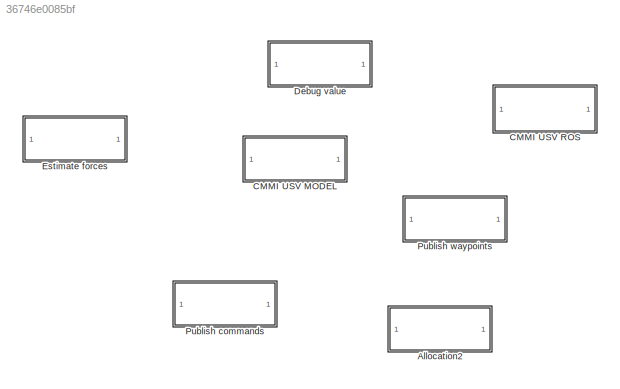
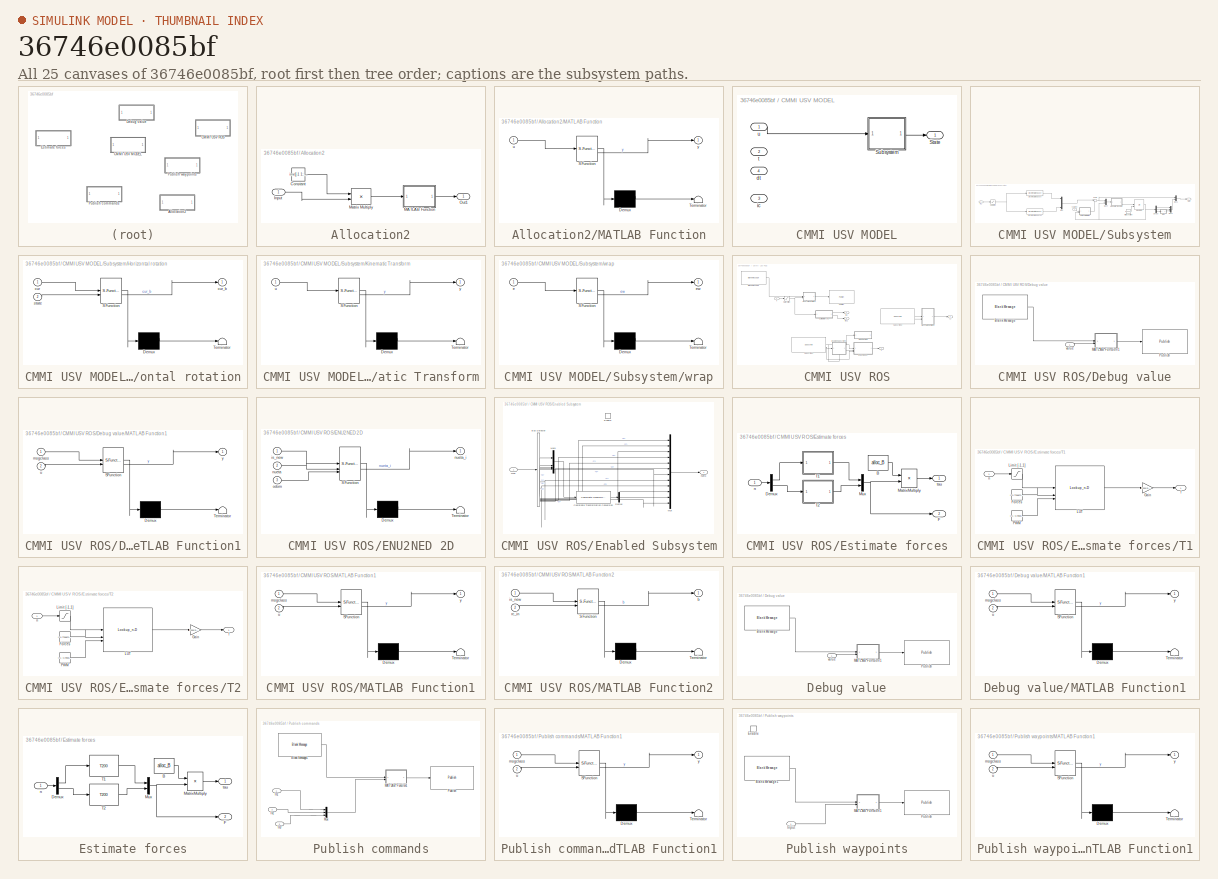
[diagram: thumbnail index - all 25 canvases of the model, root first then tree order]
MODEL slx_36746e0085bf
KIND library
CONFIG AbsTol = auto
CONFIG EnableMultiTasking = off
CONFIG FixedStep = auto
CONFIG MaxStep = auto
CONFIG MinStep = auto
CONFIG RelTol = 1e-3
CONFIG SampleTimeConstraint = Unconstrained
CONFIG SolverName = VariableStepAuto
CONFIG StartTime = 0.0
CONFIG StopTime = 10.0
BLOCK [SubSystem] Allocation2
BLOCK [Constant] Allocation2/Constant
  Value = inv([-1 1; 1 1])
BLOCK [Inport] Allocation2/Input
BLOCK [SubSystem] Allocation2/MATLAB Function
  ErrorFcn = Stateflow.Translate.translate
  PermitHierarchicalResolution = ExplicitOnly
  SFBlockType = MATLAB Function
  TreatAsAtomicUnit = on
BLOCK [Demux] Allocation2/MATLAB Function/ Demux 
  Outputs = 1
BLOCK [S-Function] Allocation2/MATLAB Function/ SFunction 
  EnableBusSupport = on
  FunctionName = sf_sfun
  PortCounts = [1 2]
  SFcnIsStateOwnerBlock = off
  SFunctionDeploymentMode = off
  Tag = Stateflow S-Function 10
BLOCK [Terminator] Allocation2/MATLAB Function/ Terminator 
BLOCK [Inport] Allocation2/MATLAB Function/u
BLOCK [Outport] Allocation2/MATLAB Function/y
BLOCK [Product] Allocation2/Matrix Multiply
  Multiplication = Matrix(*)
BLOCK [Outport] Allocation2/Out1
BLOCK [SubSystem] CMMI USV MODEL
BLOCK [Outport] CMMI USV MODEL/State
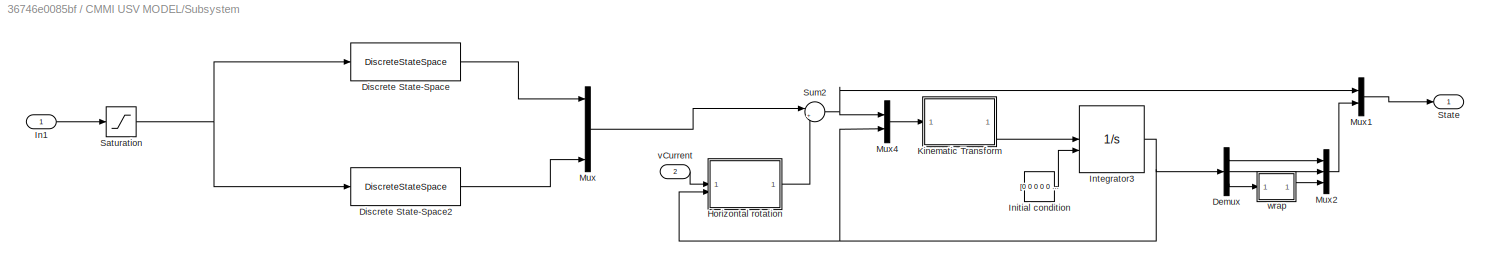
BLOCK [SubSystem] CMMI USV MODEL/Subsystem
BLOCK [Demux] CMMI USV MODEL/Subsystem/Demux
  Outputs = 3
BLOCK [DiscreteStateSpace] CMMI USV MODEL/Subsystem/Discrete State-Space
  A = ss_x.A
  B = ss_x.B
  C = ss_x.C
  D = ss_x.D
  SampleTime = ss_x.Ts
BLOCK [DiscreteStateSpace] CMMI USV MODEL/Subsystem/Discrete State-Space2
  A = ss_yaw.A
  B = ss_yaw.B
  C = ss_yaw.C
  D = ss_yaw.D
  SampleTime = ss_yaw.Ts
BLOCK [SubSystem] CMMI USV MODEL/Subsystem/Horizontal rotation
  ErrorFcn = Stateflow.Translate.translate
  PermitHierarchicalResolution = ExplicitOnly
  SFBlockType = MATLAB Function
  TreatAsAtomicUnit = on
BLOCK [Demux] CMMI USV MODEL/Subsystem/Horizontal rotation/ Demux 
  Outputs = 1
BLOCK [S-Function] CMMI USV MODEL/Subsystem/Horizontal rotation/ SFunction 
  EnableBusSupport = off
  FunctionName = sf_sfun
  PortCounts = [2 2]
  SFcnIsStateOwnerBlock = off
  SFunctionDeploymentMode = off
  Tag = Stateflow S-Function 1
BLOCK [Terminator] CMMI USV MODEL/Subsystem/Horizontal rotation/ Terminator 
BLOCK [Inport] CMMI USV MODEL/Subsystem/Horizontal rotation/cur
BLOCK [Outport] CMMI USV MODEL/Subsystem/Horizontal rotation/cur_b
BLOCK [Inport] CMMI USV MODEL/Subsystem/Horizontal rotation/state
  Port = 2
BLOCK [Inport] CMMI USV MODEL/Subsystem/In1
BLOCK [Constant] CMMI USV MODEL/Subsystem/Initial condition
  Value = [0 0 0 0 0 0]'
BLOCK [Integrator] CMMI USV MODEL/Subsystem/Integrator3
  InitialConditionSource = external
BLOCK [SubSystem] CMMI USV MODEL/Subsystem/Kinematic Transform
  ErrorFcn = Stateflow.Translate.translate
  PermitHierarchicalResolution = ExplicitOnly
  SFBlockType = MATLAB Function
  TreatAsAtomicUnit = on
BLOCK [Demux] CMMI USV MODEL/Subsystem/Kinematic Transform/ Demux 
  Outputs = 1
BLOCK [S-Function] CMMI USV MODEL/Subsystem/Kinematic Transform/ SFunction 
  EnableBusSupport = off
  FunctionName = sf_sfun
  PortCounts = [1 2]
  SFcnIsStateOwnerBlock = off
  SFunctionDeploymentMode = off
  Tag = Stateflow S-Function 8
BLOCK [Terminator] CMMI USV MODEL/Subsystem/Kinematic Transform/ Terminator 
BLOCK [Inport] CMMI USV MODEL/Subsystem/Kinematic Transform/u
BLOCK [Outport] CMMI USV MODEL/Subsystem/Kinematic Transform/y
BLOCK [Mux] CMMI USV MODEL/Subsystem/Mux
  DisplayOption = bar
  Inputs = 6
BLOCK [Mux] CMMI USV MODEL/Subsystem/Mux1
  DisplayOption = bar
  Inputs = 2
BLOCK [Mux] CMMI USV MODEL/Subsystem/Mux2
  DisplayOption = bar
  Inputs = 3
BLOCK [Mux] CMMI USV MODEL/Subsystem/Mux4
  DisplayOption = bar
  Inputs = 2
BLOCK [Saturate] CMMI USV MODEL/Subsystem/Saturation
  LowerLimit = -1
  UpperLimit = 1
BLOCK [Outport] CMMI USV MODEL/Subsystem/State
BLOCK [Sum] CMMI USV MODEL/Subsystem/Sum2
  Inputs = |++
BLOCK [Inport] CMMI USV MODEL/Subsystem/vCurrent
  Port = 2
BLOCK [SubSystem] CMMI USV MODEL/Subsystem/wrap
  ErrorFcn = Stateflow.Translate.translate
  LibrarySourceBlock = simulink/User-Defined\nFunctions/MATLAB Function
  PermitHierarchicalResolution = ExplicitOnly
  SFBlockType = MATLAB Function
  TreatAsAtomicUnit = on
BLOCK [Demux] CMMI USV MODEL/Subsystem/wrap/ Demux 
  Outputs = 1
BLOCK [S-Function] CMMI USV MODEL/Subsystem/wrap/ SFunction 
  EnableBusSupport = off
  FunctionName = sf_sfun
  PortCounts = [1 2]
  SFcnIsStateOwnerBlock = off
  SFunctionDeploymentMode = off
  Tag = Stateflow S-Function 9
BLOCK [Terminator] CMMI USV MODEL/Subsystem/wrap/ Terminator 
BLOCK [Inport] CMMI USV MODEL/Subsystem/wrap/e
BLOCK [Outport] CMMI USV MODEL/Subsystem/wrap/ew
BLOCK [Inport] CMMI USV MODEL/dt
  Port = 4
BLOCK [Inport] CMMI USV MODEL/ic
  Port = 3
BLOCK [Inport] CMMI USV MODEL/t
  Port = 2
BLOCK [Inport] CMMI USV MODEL/u
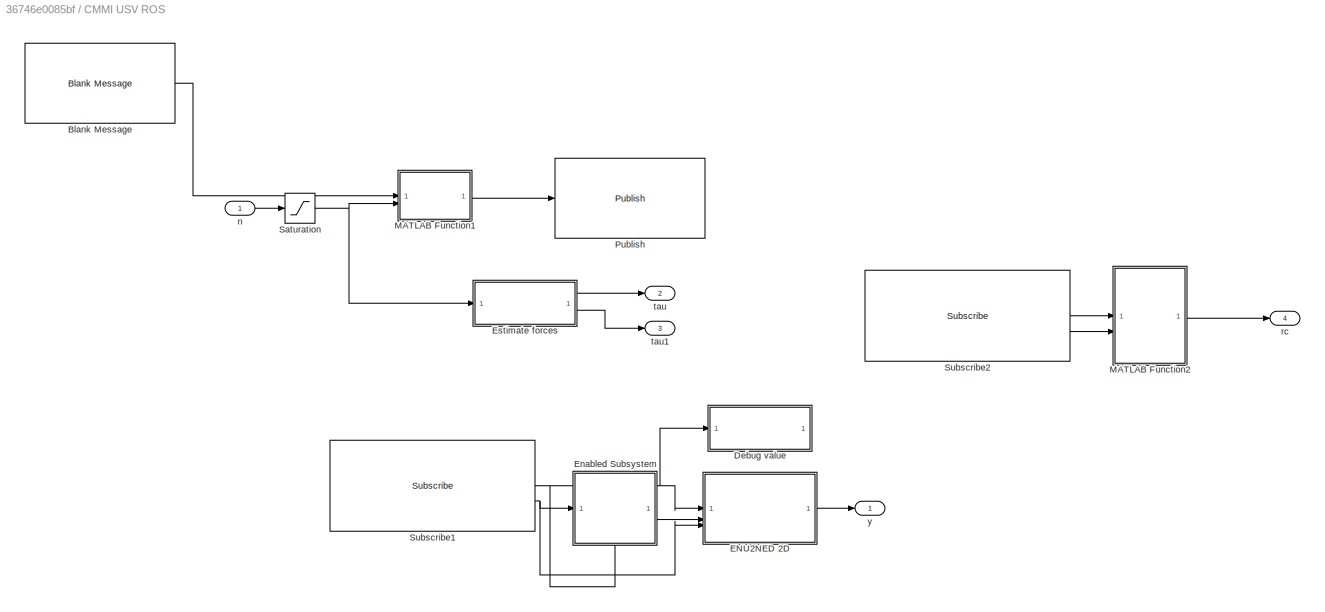
BLOCK [SubSystem] CMMI USV ROS
BLOCK [Reference] CMMI USV ROS/Blank Message  REF=ros2lib/Blank Message  (lib defined in slx_3c1549211f48)
  SourceBlock = ros2lib/Blank Message
  SourceType = ROS2 Blank Message
BLOCK [SubSystem] CMMI USV ROS/Debug value
  AncestorBlock = cmmi_lib/Debug value
BLOCK [Reference] CMMI USV ROS/Debug value/Blank Message  REF=ros2lib/Blank Message  (lib defined in slx_3c1549211f48)
  SourceBlock = ros2lib/Blank Message
  SourceType = ROS2 Blank Message
BLOCK [SubSystem] CMMI USV ROS/Debug value/MATLAB Function1
  ErrorFcn = Stateflow.Translate.translate
  PermitHierarchicalResolution = ExplicitOnly
  SFBlockType = MATLAB Function
  TreatAsAtomicUnit = on
BLOCK [Demux] CMMI USV ROS/Debug value/MATLAB Function1/ Demux 
  Outputs = 1
BLOCK [S-Function] CMMI USV ROS/Debug value/MATLAB Function1/ SFunction 
  EnableBusSupport = off
  FunctionName = sf_sfun
  PortCounts = [2 2]
  SFcnIsStateOwnerBlock = off
  SFunctionDeploymentMode = off
  Tag = Stateflow S-Function 3
BLOCK [Terminator] CMMI USV ROS/Debug value/MATLAB Function1/ Terminator 
BLOCK [Inport] CMMI USV ROS/Debug value/MATLAB Function1/msgclass
BLOCK [Inport] CMMI USV ROS/Debug value/MATLAB Function1/u
  Port = 2
BLOCK [Outport] CMMI USV ROS/Debug value/MATLAB Function1/y
BLOCK [Reference] CMMI USV ROS/Debug value/Publish  REF=ros2lib/Publish  (lib defined in slx_3c1549211f48)
  SourceBlock = ros2lib/Publish
  SourceType = ROS2 Publish
BLOCK [Inport] CMMI USV ROS/Debug value/value
BLOCK [SubSystem] CMMI USV ROS/ENU2NED 2D
  ErrorFcn = Stateflow.Translate.translate
  LibrarySourceBlock = simulink/User-Defined\nFunctions/MATLAB Function
  PermitHierarchicalResolution = ExplicitOnly
  SFBlockType = MATLAB Function
  TreatAsAtomicUnit = on
BLOCK [Demux] CMMI USV ROS/ENU2NED 2D/ Demux 
  Outputs = 1
BLOCK [S-Function] CMMI USV ROS/ENU2NED 2D/ SFunction 
  EnableBusSupport = off
  FunctionName = sf_sfun
  PortCounts = [3 2]
  SFcnIsStateOwnerBlock = off
  SFunctionDeploymentMode = off
  Tag = Stateflow S-Function 5
BLOCK [Terminator] CMMI USV ROS/ENU2NED 2D/ Terminator 
BLOCK [Inport] CMMI USV ROS/ENU2NED 2D/is_new
BLOCK [Inport] CMMI USV ROS/ENU2NED 2D/nueta
  Port = 2
BLOCK [Outport] CMMI USV ROS/ENU2NED 2D/nueta_i
BLOCK [Inport] CMMI USV ROS/ENU2NED 2D/odom
  Port = 3
BLOCK [SubSystem] CMMI USV ROS/Enabled Subsystem
  NameLocation = top
  TreatAsAtomicUnit = on
BLOCK [BusSelector] CMMI USV ROS/Enabled Subsystem/Bus Selector
  OutputSignals = pose.pose.position.x,pose.pose.position.y,pose.pose.position.z,pose.pose.orientation.x,pose.pose.orientation.y,pose.pose.orientation.z,pose.pose.orientation.w,twist.twist.linear.x,twist.twist.linear.y,twist.twist.linear.z,twist.twist.angular.x,twist.twist.angular.y,twist.twist.angular.z
BLOCK [Reference] CMMI USV ROS/Enabled Subsystem/Coordinate Transformation Conversion  REF=robotcorelib/Coordinate Transformation Conversion
  LibrarySourceBlock = roslib/Utilities/Coordinate Transformation Conversion
  SourceBlock = robotcorelib/Coordinate Transformation Conversion
  SourceType = robotics.slcore.internal.block.CoordinateTransformationConversion
BLOCK [Demux] CMMI USV ROS/Enabled Subsystem/Demux
  Outputs = 3
BLOCK [EnablePort] CMMI USV ROS/Enabled Subsystem/Enable
BLOCK [Inport] CMMI USV ROS/Enabled Subsystem/Msg
BLOCK [Mux] CMMI USV ROS/Enabled Subsystem/Mux
  DisplayOption = bar
  Inputs = 12
BLOCK [Mux] CMMI USV ROS/Enabled Subsystem/Mux1
  DisplayOption = bar
BLOCK [Outport] CMMI USV ROS/Enabled Subsystem/nueta
BLOCK [SubSystem] CMMI USV ROS/Estimate forces
  AncestorBlock = cmmi_lib/Estimate forces
BLOCK [Constant] CMMI USV ROS/Estimate forces/B
  Value = alloc_B
BLOCK [Demux] CMMI USV ROS/Estimate forces/Demux
  Outputs = 2
BLOCK [Outport] CMMI USV ROS/Estimate forces/F
  Port = 2
BLOCK [Product] CMMI USV ROS/Estimate forces/MatrixMultiply
  Multiplication = Matrix(*)
BLOCK [Mux] CMMI USV ROS/Estimate forces/Mux
  DisplayOption = bar
  Inputs = 2
BLOCK [SubSystem] CMMI USV ROS/Estimate forces/T1
BLOCK [Constant] CMMI USV ROS/Estimate forces/T1/Forces
  Value = [-0.776887107548430\n-0.772545090180361\n-0.771543086172345\n-0.762525050100200\n-0.751503006012024\n-0.741482965931864\n-0.727454909819639\n-0.717434869739479\n-0.704408817635270\n-0.693386773547094\n-0.684368737474950\n-0.675350701402806\n-0.663326653306613\n-0.649298597194389\n-0.637274549098196\n-0.629258517034068\n-0.614228456913828\n-0.610220440881764\n-0.594188376753507\n-0.584168336673347\n-0.573146292585170\n...<+3057ch>
BLOCK [Gain] CMMI USV ROS/Estimate forces/T1/Gain
  Gain = t200(2).Keff
BLOCK [Lookup_n-D] CMMI USV ROS/Estimate forces/T1/LUT
  BreakpointsForDimension1 = t200_pwm_n
  BreakpointsForDimension1Source = Input port
  InputPortMap = u0,p221,p5
  InternalRulePriority = Speed
  NumberOfTableDimensions = 1
  RndMeth = Simplest
  Table = t200_force_n
  TableSource = Input port
BLOCK [Saturate] CMMI USV ROS/Estimate forces/T1/Limit [-1,1]
  LowerLimit = -1
  UpperLimit = 1
BLOCK [Constant] CMMI USV ROS/Estimate forces/T1/PWM
  Value = [-1\n-0.990000000000000\n-0.980000000000000\n-0.970000000000000\n-0.960000000000000\n-0.950000000000000\n-0.940000000000000\n-0.930000000000000\n-0.920000000000000\n-0.910000000000000\n-0.900000000000000\n-0.890000000000000\n-0.880000000000000\n-0.870000000000000\n-0.860000000000000\n-0.850000000000000\n-0.840000000000000\n-0.830000000000000\n-0.820000000000000\n-0.810000000000000\n-0.800000000000000\n-0.7900000000000...<+3289ch>
BLOCK [Outport] CMMI USV ROS/Estimate forces/T1/f
BLOCK [Inport] CMMI USV ROS/Estimate forces/T1/n
BLOCK [SubSystem] CMMI USV ROS/Estimate forces/T2
BLOCK [Constant] CMMI USV ROS/Estimate forces/T2/Forces
  Value = [-0.776887107548430\n-0.772545090180361\n-0.771543086172345\n-0.762525050100200\n-0.751503006012024\n-0.741482965931864\n-0.727454909819639\n-0.717434869739479\n-0.704408817635270\n-0.693386773547094\n-0.684368737474950\n-0.675350701402806\n-0.663326653306613\n-0.649298597194389\n-0.637274549098196\n-0.629258517034068\n-0.614228456913828\n-0.610220440881764\n-0.594188376753507\n-0.584168336673347\n-0.573146292585170\n...<+3057ch>
BLOCK [Gain] CMMI USV ROS/Estimate forces/T2/Gain
  Gain = t200(2).Keff
BLOCK [Lookup_n-D] CMMI USV ROS/Estimate forces/T2/LUT
  BreakpointsForDimension1 = t200_pwm_n
  BreakpointsForDimension1Source = Input port
  InputPortMap = u0,p221,p5
  InternalRulePriority = Speed
  NumberOfTableDimensions = 1
  RndMeth = Simplest
  Table = t200_force_n
  TableSource = Input port
BLOCK [Saturate] CMMI USV ROS/Estimate forces/T2/Limit [-1,1]
  LowerLimit = -1
  UpperLimit = 1
BLOCK [Constant] CMMI USV ROS/Estimate forces/T2/PWM
  Value = [-1\n-0.990000000000000\n-0.980000000000000\n-0.970000000000000\n-0.960000000000000\n-0.950000000000000\n-0.940000000000000\n-0.930000000000000\n-0.920000000000000\n-0.910000000000000\n-0.900000000000000\n-0.890000000000000\n-0.880000000000000\n-0.870000000000000\n-0.860000000000000\n-0.850000000000000\n-0.840000000000000\n-0.830000000000000\n-0.820000000000000\n-0.810000000000000\n-0.800000000000000\n-0.7900000000000...<+3289ch>
BLOCK [Outport] CMMI USV ROS/Estimate forces/T2/f
BLOCK [Inport] CMMI USV ROS/Estimate forces/T2/n
BLOCK [Inport] CMMI USV ROS/Estimate forces/n
BLOCK [Outport] CMMI USV ROS/Estimate forces/tau
BLOCK [SubSystem] CMMI USV ROS/MATLAB Function1
  ErrorFcn = Stateflow.Translate.translate
  PermitHierarchicalResolution = ExplicitOnly
  SFBlockType = MATLAB Function
  TreatAsAtomicUnit = on
BLOCK [Demux] CMMI USV ROS/MATLAB Function1/ Demux 
  Outputs = 1
BLOCK [S-Function] CMMI USV ROS/MATLAB Function1/ SFunction 
  EnableBusSupport = off
  FunctionName = sf_sfun
  PortCounts = [2 2]
  SFcnIsStateOwnerBlock = off
  SFunctionDeploymentMode = off
  Tag = Stateflow S-Function 4
BLOCK [Terminator] CMMI USV ROS/MATLAB Function1/ Terminator 
BLOCK [Inport] CMMI USV ROS/MATLAB Function1/msgclass
BLOCK [Inport] CMMI USV ROS/MATLAB Function1/u
  Port = 2
BLOCK [Outport] CMMI USV ROS/MATLAB Function1/y
BLOCK [SubSystem] CMMI USV ROS/MATLAB Function2
  ErrorFcn = Stateflow.Translate.translate
  PermitHierarchicalResolution = ExplicitOnly
  SFBlockType = MATLAB Function
  SystemSampleTime = Ts
  TreatAsAtomicUnit = on
BLOCK [Demux] CMMI USV ROS/MATLAB Function2/ Demux 
  Outputs = 1
BLOCK [S-Function] CMMI USV ROS/MATLAB Function2/ SFunction 
  EnableBusSupport = off
  FunctionName = sf_sfun
  PortCounts = [2 2]
  SFcnIsStateOwnerBlock = off
  SFunctionDeploymentMode = off
  Tag = Stateflow S-Function 11
BLOCK [Terminator] CMMI USV ROS/MATLAB Function2/ Terminator 
BLOCK [Outport] CMMI USV ROS/MATLAB Function2/b
BLOCK [Inport] CMMI USV ROS/MATLAB Function2/is_new
BLOCK [Inport] CMMI USV ROS/MATLAB Function2/rc_in
  Port = 2
BLOCK [Reference] CMMI USV ROS/Publish  REF=ros2lib/Publish  (lib defined in slx_3c1549211f48)
  SourceBlock = ros2lib/Publish
  SourceType = ROS2 Publish
BLOCK [Saturate] CMMI USV ROS/Saturation
  LowerLimit = -1
  UpperLimit = 1
BLOCK [Reference] CMMI USV ROS/Subscribe1  REF=ros2lib/Subscribe  (lib defined in slx_3c1549211f48)
  SourceBlock = ros2lib/Subscribe
  SourceType = ROS2 Subscribe
BLOCK [Reference] CMMI USV ROS/Subscribe2  REF=ros2lib/Subscribe  (lib defined in slx_3c1549211f48)
  SourceBlock = ros2lib/Subscribe
  SourceType = ROS2 Subscribe
BLOCK [Inport] CMMI USV ROS/n
BLOCK [Outport] CMMI USV ROS/rc
  Port = 4
BLOCK [Outport] CMMI USV ROS/tau
  Port = 2
BLOCK [Outport] CMMI USV ROS/tau1
  Port = 3
BLOCK [Outport] CMMI USV ROS/y
BLOCK [SubSystem] Debug value
BLOCK [Reference] Debug value/Blank Message  REF=ros2lib/Blank Message  (lib defined in slx_3c1549211f48)
  SourceBlock = ros2lib/Blank Message
  SourceType = ROS2 Blank Message
BLOCK [SubSystem] Debug value/MATLAB Function1
  ErrorFcn = Stateflow.Translate.translate
  PermitHierarchicalResolution = ExplicitOnly
  SFBlockType = MATLAB Function
  TreatAsAtomicUnit = on
BLOCK [Demux] Debug value/MATLAB Function1/ Demux 
  Outputs = 1
BLOCK [S-Function] Debug value/MATLAB Function1/ SFunction 
  EnableBusSupport = off
  FunctionName = sf_sfun
  PortCounts = [2 2]
  SFcnIsStateOwnerBlock = off
  SFunctionDeploymentMode = off
  Tag = Stateflow S-Function 6
BLOCK [Terminator] Debug value/MATLAB Function1/ Terminator 
BLOCK [Inport] Debug value/MATLAB Function1/msgclass
BLOCK [Inport] Debug value/MATLAB Function1/u
  Port = 2
BLOCK [Outport] Debug value/MATLAB Function1/y
BLOCK [Reference] Debug value/Publish  REF=ros2lib/Publish  (lib defined in slx_3c1549211f48)
  SourceBlock = ros2lib/Publish
  SourceType = ROS2 Publish
BLOCK [Inport] Debug value/value
BLOCK [SubSystem] Estimate forces
BLOCK [Constant] Estimate forces/B
  Value = alloc_B
BLOCK [Demux] Estimate forces/Demux
  Outputs = 2
BLOCK [Outport] Estimate forces/F
  Port = 2
BLOCK [Product] Estimate forces/MatrixMultiply
  Multiplication = Matrix(*)
BLOCK [Mux] Estimate forces/Mux
  DisplayOption = bar
  Inputs = 2
BLOCK [Reference] Estimate forces/T1  REF=MarineRoboticsLib/T200
  SourceBlock = MarineRoboticsLib/T200
  SourceType = T200
BLOCK [Reference] Estimate forces/T2  REF=MarineRoboticsLib/T200
  SourceBlock = MarineRoboticsLib/T200
  SourceType = T200
BLOCK [Inport] Estimate forces/n
BLOCK [Outport] Estimate forces/tau
BLOCK [SubSystem] Publish commands
BLOCK [Reference] Publish commands/Blank Message1  REF=ros2lib/Blank Message  (lib defined in slx_3c1549211f48)
  SourceBlock = ros2lib/Blank Message
  SourceType = ROS2 Blank Message
BLOCK [Inport] Publish commands/In1
BLOCK [Inport] Publish commands/In2
  Port = 2
BLOCK [Inport] Publish commands/In3
  Port = 3
BLOCK [SubSystem] Publish commands/MATLAB Function1
  ErrorFcn = Stateflow.Translate.translate
  PermitHierarchicalResolution = ExplicitOnly
  SFBlockType = MATLAB Function
  TreatAsAtomicUnit = on
BLOCK [Demux] Publish commands/MATLAB Function1/ Demux 
  Outputs = 1
BLOCK [S-Function] Publish commands/MATLAB Function1/ SFunction 
  EnableBusSupport = off
  FunctionName = sf_sfun
  PortCounts = [2 2]
  SFcnIsStateOwnerBlock = off
  SFunctionDeploymentMode = off
  Tag = Stateflow S-Function 2
BLOCK [Terminator] Publish commands/MATLAB Function1/ Terminator 
BLOCK [Inport] Publish commands/MATLAB Function1/msgclass
BLOCK [Inport] Publish commands/MATLAB Function1/u
  Port = 2
BLOCK [Outport] Publish commands/MATLAB Function1/y
BLOCK [Mux] Publish commands/Mux
  DisplayOption = bar
  Inputs = 3
BLOCK [Reference] Publish commands/Publish  REF=ros2lib/Publish  (lib defined in slx_3c1549211f48)
  SourceBlock = ros2lib/Publish
  SourceType = ROS2 Publish
BLOCK [SubSystem] Publish waypoints
  TreatAsAtomicUnit = on
BLOCK [Reference] Publish waypoints/Blank Message1  REF=ros2lib/Blank Message  (lib defined in slx_3c1549211f48)
  SourceBlock = ros2lib/Blank Message
  SourceType = ROS2 Blank Message
BLOCK [EnablePort] Publish waypoints/Enable
BLOCK [Inport] Publish waypoints/Input
BLOCK [SubSystem] Publish waypoints/MATLAB Function1
  ErrorFcn = Stateflow.Translate.translate
  PermitHierarchicalResolution = ExplicitOnly
  SFBlockType = MATLAB Function
  TreatAsAtomicUnit = on
BLOCK [Demux] Publish waypoints/MATLAB Function1/ Demux 
  Outputs = 1
BLOCK [S-Function] Publish waypoints/MATLAB Function1/ SFunction 
  EnableBusSupport = off
  FunctionName = sf_sfun
  PortCounts = [2 2]
  SFcnIsStateOwnerBlock = off
  SFunctionDeploymentMode = off
  Tag = Stateflow S-Function 7
BLOCK [Terminator] Publish waypoints/MATLAB Function1/ Terminator 
BLOCK [Inport] Publish waypoints/MATLAB Function1/msgclass
BLOCK [Inport] Publish waypoints/MATLAB Function1/u
  Port = 2
BLOCK [Outport] Publish waypoints/MATLAB Function1/y
BLOCK [Reference] Publish waypoints/Publish  REF=ros2lib/Publish  (lib defined in slx_3c1549211f48)
  SourceBlock = ros2lib/Publish
  SourceType = ROS2 Publish
LINE Allocation2/Constant:1 -> Allocation2/Matrix Multiply:1
LINE Allocation2/Input:1 -> Allocation2/Matrix Multiply:2
LINE Allocation2/MATLAB Function:1 -> Allocation2/Out1:1
LINE Allocation2/Matrix Multiply:1 -> Allocation2/MATLAB Function:1
LINE CMMI USV MODEL/Subsystem/Demux:1 -> CMMI USV MODEL/Subsystem/Mux2:1
LINE CMMI USV MODEL/Subsystem/Demux:2 -> CMMI USV MODEL/Subsystem/Mux2:2
LINE CMMI USV MODEL/Subsystem/Demux:3 -> CMMI USV MODEL/Subsystem/wrap:1
LINE CMMI USV MODEL/Subsystem/Discrete State-Space2:1 -> CMMI USV MODEL/Subsystem/Mux:6
LINE CMMI USV MODEL/Subsystem/Discrete State-Space:1 -> CMMI USV MODEL/Subsystem/Mux:1
LINE CMMI USV MODEL/Subsystem/Horizontal rotation:1 -> CMMI USV MODEL/Subsystem/Sum2:2
LINE CMMI USV MODEL/Subsystem/In1:1 -> CMMI USV MODEL/Subsystem/Saturation:1
LINE CMMI USV MODEL/Subsystem/Initial condition:1 -> CMMI USV MODEL/Subsystem/Integrator3:2
NET CMMI USV MODEL/Subsystem/Integrator3:1 -> CMMI USV MODEL/Subsystem/Demux:1, CMMI USV MODEL/Subsystem/Horizontal rotation:2, CMMI USV MODEL/Subsystem/Mux4:2
LINE CMMI USV MODEL/Subsystem/Kinematic Transform:1 -> CMMI USV MODEL/Subsystem/Integrator3:1
LINE CMMI USV MODEL/Subsystem/Mux1:1 -> CMMI USV MODEL/Subsystem/State:1
LINE CMMI USV MODEL/Subsystem/Mux2:1 -> CMMI USV MODEL/Subsystem/Mux1:2
LINE CMMI USV MODEL/Subsystem/Mux4:1 -> CMMI USV MODEL/Subsystem/Kinematic Transform:1
LINE CMMI USV MODEL/Subsystem/Mux:1 -> CMMI USV MODEL/Subsystem/Sum2:1
NET CMMI USV MODEL/Subsystem/Saturation:1 -> CMMI USV MODEL/Subsystem/Discrete State-Space2:1, CMMI USV MODEL/Subsystem/Discrete State-Space:1
NET CMMI USV MODEL/Subsystem/Sum2:1 -> CMMI USV MODEL/Subsystem/Mux1:1, CMMI USV MODEL/Subsystem/Mux4:1
LINE CMMI USV MODEL/Subsystem/vCurrent:1 -> CMMI USV MODEL/Subsystem/Horizontal rotation:1
LINE CMMI USV MODEL/Subsystem/wrap:1 -> CMMI USV MODEL/Subsystem/Mux2:3
LINE CMMI USV MODEL/Subsystem:1 -> CMMI USV MODEL/State:1
LINE CMMI USV MODEL/u:1 -> CMMI USV MODEL/Subsystem:1
LINE CMMI USV ROS/Blank Message:1 -> CMMI USV ROS/MATLAB Function1:1
LINE CMMI USV ROS/ENU2NED 2D:1 -> CMMI USV ROS/y:1
LINE CMMI USV ROS/Enabled Subsystem/Bus Selector:1 -> CMMI USV ROS/Enabled Subsystem/Mux:7
LINE CMMI USV ROS/Enabled Subsystem/Bus Selector:10 -> CMMI USV ROS/Enabled Subsystem/Mux:3
LINE CMMI USV ROS/Enabled Subsystem/Bus Selector:11 -> CMMI USV ROS/Enabled Subsystem/Mux:4
LINE CMMI USV ROS/Enabled Subsystem/Bus Selector:12 -> CMMI USV ROS/Enabled Subsystem/Mux:5
LINE CMMI USV ROS/Enabled Subsystem/Bus Selector:13 -> CMMI USV ROS/Enabled Subsystem/Mux:6
LINE CMMI USV ROS/Enabled Subsystem/Bus Selector:2 -> CMMI USV ROS/Enabled Subsystem/Mux:8
LINE CMMI USV ROS/Enabled Subsystem/Bus Selector:3 -> CMMI USV ROS/Enabled Subsystem/Mux:9
LINE CMMI USV ROS/Enabled Subsystem/Bus Selector:4 -> CMMI USV ROS/Enabled Subsystem/Mux1:1
LINE CMMI USV ROS/Enabled Subsystem/Bus Selector:5 -> CMMI USV ROS/Enabled Subsystem/Mux1:2
LINE CMMI USV ROS/Enabled Subsystem/Bus Selector:6 -> CMMI USV ROS/Enabled Subsystem/Mux1:3
LINE CMMI USV ROS/Enabled Subsystem/Bus Selector:7 -> CMMI USV ROS/Enabled Subsystem/Mux1:4
LINE CMMI USV ROS/Enabled Subsystem/Bus Selector:8 -> CMMI USV ROS/Enabled Subsystem/Mux:1
LINE CMMI USV ROS/Enabled Subsystem/Bus Selector:9 -> CMMI USV ROS/Enabled Subsystem/Mux:2
LINE CMMI USV ROS/Enabled Subsystem/Coordinate Transformation Conversion:1 -> CMMI USV ROS/Enabled Subsystem/Demux:1
LINE CMMI USV ROS/Enabled Subsystem/Demux:1 -> CMMI USV ROS/Enabled Subsystem/Mux:10
LINE CMMI USV ROS/Enabled Subsystem/Demux:2 -> CMMI USV ROS/Enabled Subsystem/Mux:11
LINE CMMI USV ROS/Enabled Subsystem/Demux:3 -> CMMI USV ROS/Enabled Subsystem/Mux:12
LINE CMMI USV ROS/Enabled Subsystem/Msg:1 -> CMMI USV ROS/Enabled Subsystem/Bus Selector:1
LINE CMMI USV ROS/Enabled Subsystem/Mux1:1 -> CMMI USV ROS/Enabled Subsystem/Coordinate Transformation Conversion:1
LINE CMMI USV ROS/Enabled Subsystem/Mux:1 -> CMMI USV ROS/Enabled Subsystem/nueta:1
LINE CMMI USV ROS/Enabled Subsystem:1 -> CMMI USV ROS/ENU2NED 2D:2
LINE CMMI USV ROS/Estimate forces:1 -> CMMI USV ROS/tau:1
LINE CMMI USV ROS/Estimate forces:2 -> CMMI USV ROS/tau1:1
LINE CMMI USV ROS/MATLAB Function1:1 -> CMMI USV ROS/Publish:1
LINE CMMI USV ROS/MATLAB Function2:1 -> CMMI USV ROS/rc:1
NET CMMI USV ROS/Saturation:1 -> CMMI USV ROS/Estimate forces:1, CMMI USV ROS/MATLAB Function1:2
NET CMMI USV ROS/Subscribe1:1 -> CMMI USV ROS/Debug value:1, CMMI USV ROS/ENU2NED 2D:1, CMMI USV ROS/Enabled Subsystem:enable
NET CMMI USV ROS/Subscribe1:2 -> CMMI USV ROS/ENU2NED 2D:3, CMMI USV ROS/Enabled Subsystem:1
LINE CMMI USV ROS/Subscribe2:1 -> CMMI USV ROS/MATLAB Function2:1
LINE CMMI USV ROS/Subscribe2:2 -> CMMI USV ROS/MATLAB Function2:2
LINE CMMI USV ROS/n:1 -> CMMI USV ROS/Saturation:1
LINE Debug value/Blank Message:1 -> Debug value/MATLAB Function1:1
LINE Debug value/MATLAB Function1:1 -> Debug value/Publish:1
LINE Debug value/value:1 -> Debug value/MATLAB Function1:2
LINE Estimate forces/B:1 -> Estimate forces/MatrixMultiply:1
LINE Estimate forces/Demux:1 -> Estimate forces/T1:1
LINE Estimate forces/Demux:2 -> Estimate forces/T2:1
LINE Estimate forces/MatrixMultiply:1 -> Estimate forces/tau:1
NET Estimate forces/Mux:1 -> Estimate forces/F:1, Estimate forces/MatrixMultiply:2
LINE Estimate forces/T1:1 -> Estimate forces/Mux:1
LINE Estimate forces/T2:1 -> Estimate forces/Mux:2
LINE Estimate forces/n:1 -> Estimate forces/Demux:1
LINE Publish commands/Blank Message1:1 -> Publish commands/MATLAB Function1:1
LINE Publish commands/In1:1 -> Publish commands/Mux:1
LINE Publish commands/In2:1 -> Publish commands/Mux:2
LINE Publish commands/In3:1 -> Publish commands/Mux:3
LINE Publish commands/MATLAB Function1:1 -> Publish commands/Publish:1
LINE Publish commands/Mux:1 -> Publish commands/MATLAB Function1:2
LINE Publish waypoints/Blank Message1:1 -> Publish waypoints/MATLAB Function1:1
LINE Publish waypoints/Input:1 -> Publish waypoints/MATLAB Function1:2
LINE Publish waypoints/MATLAB Function1:1 -> Publish waypoints/Publish:1
note: NET lines group one-source signal fan-out (src -> all destinations, sorted); 1:1 wires keep LINE
CHART CMMI USV MODEL/Subsystem/Horizontal rotation states=1 transitions=1
  STATE_LABEL 'eML_blk_kernel()'
  STATE_LABEL 'SCRIPT:\nfunction cur_b = fcn(cur, state)\ncur_b = zeros(6,1);\nPsi = state(6,1);\nR_z_psi = [cos(Psi) sin(Psi); -sin(Psi) cos(Psi)];\n\ncur_ne_b = R_z_psi*cur;\ncur_b(1) = cur_ne_b(1);\ncur_b(2) = cur_ne_b(2);\n\n'
CHART Publish commands/MATLAB Function1 states=1 transitions=1
  STATE_LABEL 'eML_blk_kernel()'
  STATE_LABEL 'SCRIPT:\nfunction y = fcn(msgclass, u)\n\n% blank message input\nmsg = msgclass();\n\n% assign pwm values into data field\nmsg.data(1:numel(u)) = reshape(u,[],1);\n\n% all other fields must be assigned to complete the message\nmsg.data_SL_Info.CurrentLength = uint32(numel(u));\nmsg.layout.dim(1).size = uint32(size(u,1));\n\ny = msg;\n'
CHART CMMI USV ROS/Debug value/MATLAB Function1 states=1 transitions=1
  STATE_LABEL 'eML_blk_kernel()'
  STATE_LABEL 'SCRIPT:\nfunction y = fcn(msgclass, u)\n\n% blank message input\nmsg = msgclass();\n\n\n% all other fields must be assigned to complete the message\nmsg.data_SL_Info.CurrentLength = uint32(numel(u));\nmsg.layout.dim_SL_Info.CurrentLength = uint32(1);\nmsg.layout.dim(1).size = uint32(size(u,1));\n\n% assign pwm values into data field\nmsg.data(1:numel(u)) = reshape(u,[],1);\n\n\ny = msg;\n'  <repeated x3 — deduplicated; at blocks: MATLAB Function1>
CHART CMMI USV ROS/MATLAB Function1 states=1 transitions=1
  STATE_LABEL 'eML_blk_kernel()'
CHART CMMI USV ROS/ENU2NED 2D states=1 transitions=1
  STATE_LABEL 'eML_blk_kernel()'
  STATE_LABEL 'SCRIPT:\nfunction nueta_i = enu2ned2d(is_new, nueta, odom)\n% % Just do coordinate swap\n% psi_ned = pi/2-psi_enu;\n% \n% psi_ned = mod(psi_ned, 2*pi);\n% \n% if psi_ned > pi\n%    psi_ned = -2*pi + psi_ned;\n% elseif psi_ned <= -pi \n%    psi_ned = 2*pi + psi_ned;\n% end\n% \n% \n% eta = [y_enu; x_enu; psi_ned];\n% nu = [u_enu; -v_enu; -r_enu;];\n\npersistent f_t s_t f s t start_t\n\n    nueta_i = [0,0,0,0,0,0,0,0,...<+692ch>'
CHART Debug value/MATLAB Function1 states=1 transitions=1
  STATE_LABEL 'eML_blk_kernel()'
CHART Publish waypoints/MATLAB Function1 states=1 transitions=1
  STATE_LABEL 'eML_blk_kernel()'
  STATE_LABEL 'SCRIPT:\nfunction y = fcn(msgclass, u)\n\n% blank message input\nmsg = msgclass();\n\nnum_points = 5;\n% num_points = 127;\nmsg.poses_SL_Info.CurrentLength = uint32(num_points);\nfor i=1:num_points\n    msg.poses(i).pose.position.x = u(i, 1);\n    msg.poses(i).pose.position.y = u(i, 2);\n    msg.poses(i).pose.orientation.z = u(i, 3);\nend\ny = msg;'
CHART CMMI USV MODEL/Subsystem/Kinematic Transform states=1 transitions=1
  STATE_LABEL 'eML_blk_kernel()'
  STATE_LABEL 'SCRIPT:\nfunction y = fcn(u)\n%#codegen\nif (length(u)<12) \n    y = zeros(12,1);\n    return;\nend\n\ninput = u;\n% Read inputs\nu = input(1,1);\nv = input(2,1);\nw = input(3,1);\np = input(4,1);\nq = input(5,1);\nr = input(6,1);\n\n%x = input(7,1);\n%y = input(8,1);\n%z = input(9,1);\nphi = input(10,1);\ntheta = input(11,1);\nPsi = input(12,1);\n\nDOF6 = 1; % Select degrees of freedom\n\ntmp1 = []; tmp2 = [];\n\nif DOF6 ==...<+1153ch>'
CHART CMMI USV MODEL/Subsystem/wrap states=1 transitions=1
  STATE_LABEL 'eML_blk_kernel()'
  STATE_LABEL 'SCRIPT:\nfunction ew = wrap(e)\n\new = mod(e, 2*pi);\n\nif ew > pi\n   ew = -2*pi + ew;\nelseif ew <= -pi \n   ew = 2*pi + ew;\nend\n'
CHART Allocation2/MATLAB Function states=1 transitions=1
  STATE_LABEL 'eML_blk_kernel()'
  STATE_LABEL 'SCRIPT:\nfunction y = fcn(u)\n\ny = t200_inv(u);'
CHART CMMI USV ROS/MATLAB Function2 states=1 transitions=1
  STATE_LABEL 'eML_blk_kernel()'
  STATE_LABEL "SCRIPT:\nfunction b = fcn(is_new, rc_in)\n    persistent buttons\n\n    if isempty(buttons)\n        buttons = [0 0 0 0 0 0 0 0]';\n    end\n    if is_new\n        buttons(1) = double(rc_in.data(1)) < -0.2;\n        buttons(2) = double(rc_in.data(2)) > 0.2;\n    end\n    b = buttons;\nend\n\n\n\n"
CHART  states=0 transitions=0
CHART  states=0 transitions=0
CHART  states=0 transitions=0
CHART  states=0 transitions=0
CHART  states=0 transitions=0
CHART  states=0 transitions=0
CHART  states=0 transitions=0
CHART  states=0 transitions=0
CHART  states=0 transitions=0
CHART  states=0 transitions=0
CHART  states=0 transitions=0
